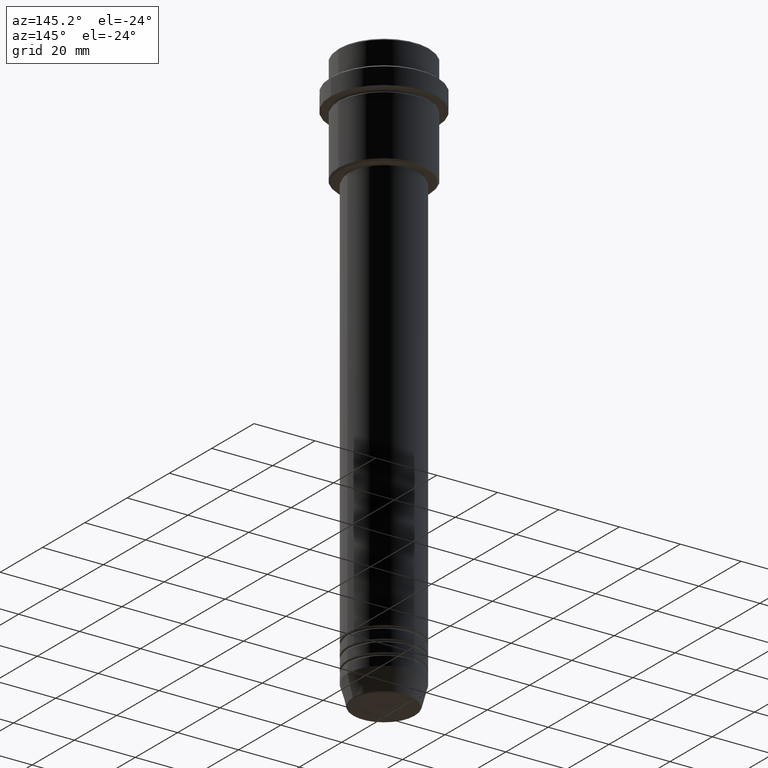
[diagram: clean part render]
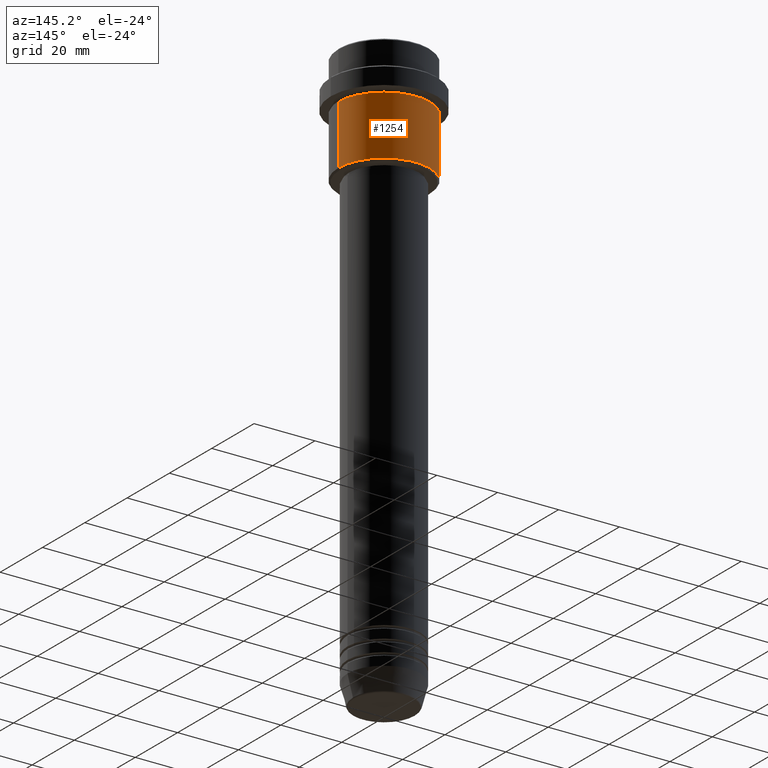
[diagram: same view with one face highlighted and labeled with its STEP entity id]
A machine part, auxiliary view. The second image highlights one B-rep face of the part: STEP entity #1254.
In plain terms, the highlighted cylindrical surface (partial cylindrical patch) has radius 15 mm, axis along (-0, -0, 1).
Its self-contained STEP definition (entity closure, byte-faithful):
#59 = AXIS2_PLACEMENT_3D ( 'NONE', #741, #1183, #175 ) ;
#170 = EDGE_CURVE ( 'NONE', #709, #1333, #602, .T. ) ;
#175 = DIRECTION ( 'NONE',  ( 1.000000000000000000, 0.000000000000000000, 0.000000000000000000 ) ) ;
#194 = CARTESIAN_POINT ( 'NONE',  ( -15.00000000000000000, 1.836970198721029589E-15, -35.50000000000002132 ) ) ;
#217 = EDGE_CURVE ( 'NONE', #678, #709, #549, .T. ) ;
#249 = EDGE_LOOP ( 'NONE', ( #529, #336, #772, #801 ) ) ;
#283 = EDGE_CURVE ( 'NONE', #678, #1252, #923, .T. ) ;
#329 = DIRECTION ( 'NONE',  ( 1.000000000000000000, 0.000000000000000000, 0.000000000000000000 ) ) ;
#336 = ORIENTED_EDGE ( 'NONE', *, *, #170, .T. ) ;
#347 = CARTESIAN_POINT ( 'NONE',  ( 0.000000000000000000, 0.000000000000000000, -16.00000000000000000 ) ) ;
#393 = CARTESIAN_POINT ( 'NONE',  ( -15.00000000000000000, 1.836970198721029589E-15, 0.000000000000000000 ) ) ;
#504 = CARTESIAN_POINT ( 'NONE',  ( 15.00000000000000178, 0.000000000000000000, -16.00000000000000000 ) ) ;
#529 = ORIENTED_EDGE ( 'NONE', *, *, #217, .T. ) ;
#530 = VECTOR ( 'NONE', #1140, 1000.000000000000000 ) ;
#549 = CIRCLE ( 'NONE', #1287, 15.00000000000000000 ) ;
#587 = CARTESIAN_POINT ( 'NONE',  ( 15.00000000000000000, 0.000000000000000000, 0.000000000000000000 ) ) ;
#602 = LINE ( 'NONE', #393, #1061 ) ;
#639 = CYLINDRICAL_SURFACE ( 'NONE', #59, 15.00000000000000000 ) ;
#678 = VERTEX_POINT ( 'NONE', #1411 ) ;
#709 = VERTEX_POINT ( 'NONE', #194 ) ;
#720 = CARTESIAN_POINT ( 'NONE',  ( 0.000000000000000000, 0.000000000000000000, -35.50000000000002132 ) ) ;
#729 = DIRECTION ( 'NONE',  ( -1.000000000000000000, 0.000000000000000000, 0.000000000000000000 ) ) ;
#741 = CARTESIAN_POINT ( 'NONE',  ( 0.000000000000000000, 0.000000000000000000, 0.000000000000000000 ) ) ;
#772 = ORIENTED_EDGE ( 'NONE', *, *, #1078, .F. ) ;
#801 = ORIENTED_EDGE ( 'NONE', *, *, #283, .F. ) ;
#834 = DIRECTION ( 'NONE',  ( -0.000000000000000000, -0.000000000000000000, 1.000000000000000000 ) ) ;
#923 = LINE ( 'NONE', #587, #530 ) ;
#942 = FACE_OUTER_BOUND ( 'NONE', #249, .T. ) ;
#1061 = VECTOR ( 'NONE', #834, 1000.000000000000000 ) ;
#1078 = EDGE_CURVE ( 'NONE', #1252, #1333, #1089, .T. ) ;
#1089 = CIRCLE ( 'NONE', #1134, 15.00000000000000178 ) ;
#1134 = AXIS2_PLACEMENT_3D ( 'NONE', #347, #1415, #329 ) ;
#1140 = DIRECTION ( 'NONE',  ( -0.000000000000000000, -0.000000000000000000, 1.000000000000000000 ) ) ;
#1183 = DIRECTION ( 'NONE',  ( -0.000000000000000000, -0.000000000000000000, 1.000000000000000000 ) ) ;
#1241 = CARTESIAN_POINT ( 'NONE',  ( -15.00000000000000355, 1.836970198721029983E-15, -16.00000000000000000 ) ) ;
#1248 = DIRECTION ( 'NONE',  ( -0.000000000000000000, -0.000000000000000000, 1.000000000000000000 ) ) ;
#1252 = VERTEX_POINT ( 'NONE', #504 ) ;
#1254 = ADVANCED_FACE ( 'NONE', ( #942 ), #639, .T. ) ;
#1287 = AXIS2_PLACEMENT_3D ( 'NONE', #720, #1248, #729 ) ;
#1333 = VERTEX_POINT ( 'NONE', #1241 ) ;
#1411 = CARTESIAN_POINT ( 'NONE',  ( 15.00000000000000000, 0.000000000000000000, -35.50000000000002132 ) ) ;
#1415 = DIRECTION ( 'NONE',  ( -0.000000000000000000, -0.000000000000000000, 1.000000000000000000 ) ) ;